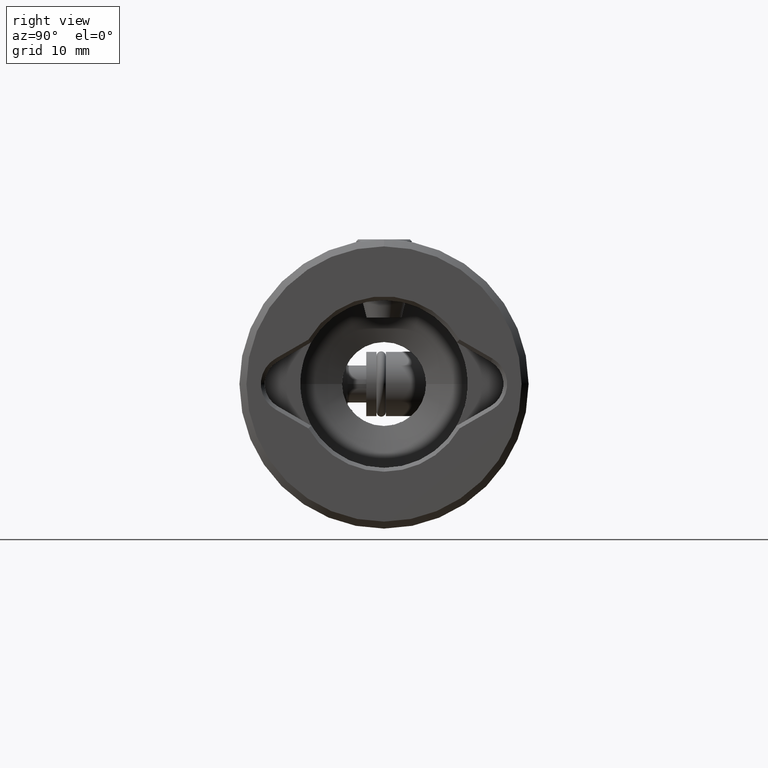
[diagram: clean part render]
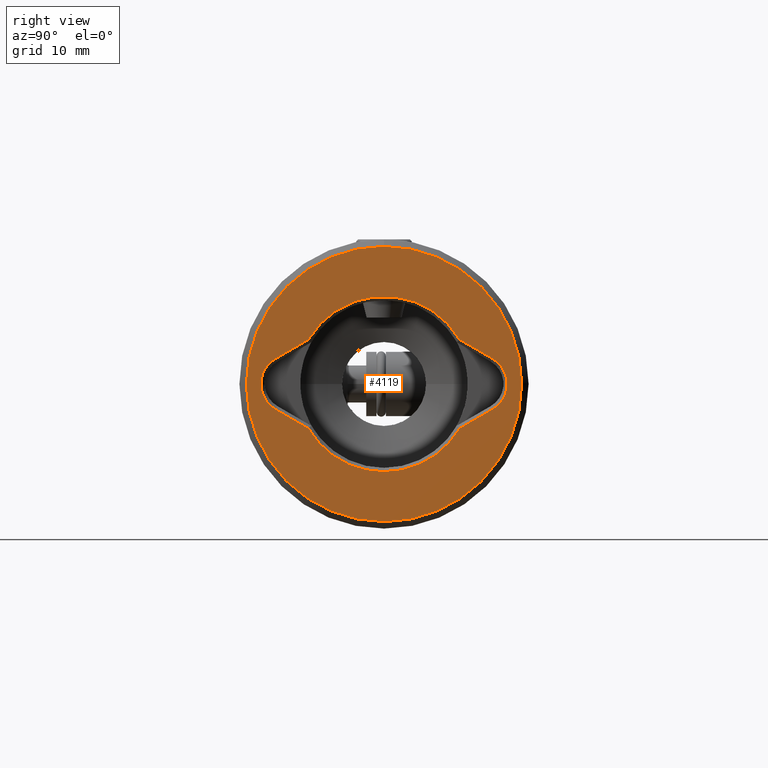
[diagram: same view with one face highlighted and labeled with its STEP entity id]
A machine part, right view. The second image highlights one B-rep face of the part: STEP entity #4119.
In plain terms, the highlighted planar face has unit normal (-1, -0, 0).
Its self-contained STEP definition (entity closure, byte-faithful):
#10 = AXIS2_PLACEMENT_3D ( 'NONE', #3652, #3949, #1526 ) ;
#27 = CIRCLE ( 'NONE', #906, 3.150000000000013678 ) ;
#53 = CARTESIAN_POINT ( 'NONE',  ( 4.759769798814311947, -8.105836876121800927, 1.397440057103510890E-15 ) ) ;
#92 = ORIENTED_EDGE ( 'NONE', *, *, #2746, .T. ) ;
#109 = CARTESIAN_POINT ( 'NONE',  ( 0.0000000000000000000, 0.0000000000000000000, 0.0000000000000000000 ) ) ;
#176 = ORIENTED_EDGE ( 'NONE', *, *, #4326, .T. ) ;
#234 = EDGE_LOOP ( 'NONE', ( #2050, #2069, #458, #3097, #1823, #297, #3054, #92, #176 ) ) ;
#297 = ORIENTED_EDGE ( 'NONE', *, *, #3318, .T. ) ;
#335 = ORIENTED_EDGE ( 'NONE', *, *, #824, .T. ) ;
#361 = VERTEX_POINT ( 'NONE', #4590 ) ;
#370 = DIRECTION ( 'NONE',  ( 0.5000000000000014433, 0.8660254037844379305, -1.492830725713291689E-16 ) ) ;
#448 = EDGE_CURVE ( 'NONE', #2207, #3595, #2475, .T. ) ;
#458 = ORIENTED_EDGE ( 'NONE', *, *, #2467, .T. ) ;
#538 = DIRECTION ( 'NONE',  ( -0.5000000000000009992, 0.8660254037844380415, -1.493019539276800953E-16 ) ) ;
#577 = VECTOR ( 'NONE', #370, 999.9999999999998863 ) ;
#684 = AXIS2_PLACEMENT_3D ( 'NONE', #1964, #4416, #4445 ) ;
#738 = EDGE_CURVE ( 'NONE', #3982, #2985, #3258, .T. ) ;
#769 = CARTESIAN_POINT ( 'NONE',  ( -4.759769798814311947, 8.105836876121802703, -1.397440057103511285E-15 ) ) ;
#824 = EDGE_CURVE ( 'NONE', #1554, #2534, #1235, .T. ) ;
#847 = CARTESIAN_POINT ( 'NONE',  ( 2.727980021920985099, -11.62500000000004263, 2.004063698530809863E-15 ) ) ;
#849 = VERTEX_POINT ( 'NONE', #769 ) ;
#906 = AXIS2_PLACEMENT_3D ( 'NONE', #3737, #4453, #3017 ) ;
#934 = EDGE_CURVE ( 'NONE', #1367, #2389, #4057, .T. ) ;
#994 = FACE_BOUND ( 'NONE', #234, .T. ) ;
#1102 = DIRECTION ( 'NONE',  ( -1.888135635087050939E-20, -1.723881454251955994E-16, 1.000000000000000000 ) ) ;
#1235 = CIRCLE ( 'NONE', #10, 14.75000000000006750 ) ;
#1367 = VERTEX_POINT ( 'NONE', #4036 ) ;
#1383 = EDGE_CURVE ( 'NONE', #2534, #1554, #1762, .T. ) ;
#1394 = VECTOR ( 'NONE', #538, 1000.000000000000114 ) ;
#1502 = DIRECTION ( 'NONE',  ( 1.000000000000000000, -4.163335914195348830E-17, 1.888135635086333229E-20 ) ) ;
#1519 = EDGE_CURVE ( 'NONE', #2389, #849, #2430, .T. ) ;
#1526 = DIRECTION ( 'NONE',  ( 1.000000000000000000, -4.163335914195348213E-17, 1.888135635086333229E-20 ) ) ;
#1551 = AXIS2_PLACEMENT_3D ( 'NONE', #109, #2660, #3016 ) ;
#1554 = VERTEX_POINT ( 'NONE', #4517 ) ;
#1585 = CARTESIAN_POINT ( 'NONE',  ( 4.759769798814313724, 8.105836876121800927, -1.397260315284072058E-15 ) ) ;
#1638 = ORIENTED_EDGE ( 'NONE', *, *, #1383, .T. ) ;
#1686 = CIRCLE ( 'NONE', #4189, 9.400000000000051870 ) ;
#1708 = AXIS2_PLACEMENT_3D ( 'NONE', #3282, #2947, #1502 ) ;
#1762 = CIRCLE ( 'NONE', #1551, 14.75000000000006750 ) ;
#1820 = CARTESIAN_POINT ( 'NONE',  ( 0.0000000000000000000, 0.0000000000000000000, 0.0000000000000000000 ) ) ;
#1823 = ORIENTED_EDGE ( 'NONE', *, *, #1519, .T. ) ;
#1895 = LINE ( 'NONE', #2695, #1394 ) ;
#1945 = FACE_OUTER_BOUND ( 'NONE', #4391, .T. ) ;
#1964 = CARTESIAN_POINT ( 'NONE',  ( -3.326899834363186723E-16, 10.05000000000004157, -1.732500861523214966E-15 ) ) ;
#2011 = CARTESIAN_POINT ( 'NONE',  ( -9.400000000000050093, 3.913535759343648558E-16, 0.0000000000000000000 ) ) ;
#2028 = EDGE_CURVE ( 'NONE', #3595, #3004, #3696, .T. ) ;
#2050 = ORIENTED_EDGE ( 'NONE', *, *, #448, .T. ) ;
#2069 = ORIENTED_EDGE ( 'NONE', *, *, #2028, .T. ) ;
#2157 = CARTESIAN_POINT ( 'NONE',  ( 7.079757675937829120, -4.087500000000040323, 7.047702198530476099E-16 ) ) ;
#2196 = DIRECTION ( 'NONE',  ( 1.000000000000000000, -4.163335914195348213E-17, 1.888135635086332928E-20 ) ) ;
#2207 = VERTEX_POINT ( 'NONE', #847 ) ;
#2214 = VECTOR ( 'NONE', #3436, 999.9999999999998863 ) ;
#2367 = CARTESIAN_POINT ( 'NONE',  ( -14.74999999999998934, 2.417337286197967766E-15, 2.785000061695307738E-19 ) ) ;
#2389 = VERTEX_POINT ( 'NONE', #4117 ) ;
#2397 = VECTOR ( 'NONE', #3637, 999.9999999999998863 ) ;
#2430 = LINE ( 'NONE', #4532, #2214 ) ;
#2467 = EDGE_CURVE ( 'NONE', #3004, #1367, #1895, .T. ) ;
#2475 = LINE ( 'NONE', #2157, #577 ) ;
#2534 = VERTEX_POINT ( 'NONE', #2367 ) ;
#2660 = DIRECTION ( 'NONE',  ( -1.888135635086342558E-20, 1.723881454251955994E-16, -1.000000000000000000 ) ) ;
#2695 = CARTESIAN_POINT ( 'NONE',  ( 7.079757675937830008, 4.087500000000036771, -7.045028689979328546E-16 ) ) ;
#2746 = EDGE_CURVE ( 'NONE', #2985, #361, #3021, .T. ) ;
#2939 = CARTESIAN_POINT ( 'NONE',  ( -7.079757675937831785, -4.087500000000039435, 7.045028689979332490E-16 ) ) ;
#2947 = DIRECTION ( 'NONE',  ( 1.888135635086342558E-20, -1.723881454251955994E-16, 1.000000000000000000 ) ) ;
#2985 = VERTEX_POINT ( 'NONE', #3681 ) ;
#3001 = AXIS2_PLACEMENT_3D ( 'NONE', #1820, #4293, #4586 ) ;
#3004 = VERTEX_POINT ( 'NONE', #1585 ) ;
#3016 = DIRECTION ( 'NONE',  ( 1.000000000000000000, -4.163335914195348213E-17, 1.888135635086333229E-20 ) ) ;
#3017 = DIRECTION ( 'NONE',  ( 1.000000000000000000, 0.0000000000000000000, 1.888135635085025703E-20 ) ) ;
#3021 = LINE ( 'NONE', #2939, #2397 ) ;
#3054 = ORIENTED_EDGE ( 'NONE', *, *, #738, .T. ) ;
#3097 = ORIENTED_EDGE ( 'NONE', *, *, #934, .T. ) ;
#3258 = CIRCLE ( 'NONE', #3001, 9.400000000000051870 ) ;
#3282 = CARTESIAN_POINT ( 'NONE',  ( 0.0000000000000000000, 0.0000000000000000000, 0.0000000000000000000 ) ) ;
#3318 = EDGE_CURVE ( 'NONE', #849, #3982, #1686, .T. ) ;
#3436 = DIRECTION ( 'NONE',  ( -0.5000000000000012212, -0.8660254037844380415, 1.492830725713292428E-16 ) ) ;
#3552 = DIRECTION ( 'NONE',  ( 1.000000000000000000, -4.163335914195348213E-17, 1.888135635086333229E-20 ) ) ;
#3579 = DIRECTION ( 'NONE',  ( 1.888135635086342558E-20, -1.723881454251955994E-16, 1.000000000000000000 ) ) ;
#3584 = AXIS2_PLACEMENT_3D ( 'NONE', #4267, #1102, #3552 ) ;
#3592 = CARTESIAN_POINT ( 'NONE',  ( 0.0000000000000000000, 0.0000000000000000000, 0.0000000000000000000 ) ) ;
#3595 = VERTEX_POINT ( 'NONE', #53 ) ;
#3637 = DIRECTION ( 'NONE',  ( 0.5000000000000012212, -0.8660254037844380415, 1.493019539276800953E-16 ) ) ;
#3652 = CARTESIAN_POINT ( 'NONE',  ( 0.0000000000000000000, 0.0000000000000000000, 0.0000000000000000000 ) ) ;
#3681 = CARTESIAN_POINT ( 'NONE',  ( -4.759769798814312836, -8.105836876121802703, 1.397260315284072649E-15 ) ) ;
#3696 = CIRCLE ( 'NONE', #1708, 9.400000000000050093 ) ;
#3737 = CARTESIAN_POINT ( 'NONE',  ( 5.041405353169503547E-16, -10.05000000000004157, 1.732500861523214966E-15 ) ) ;
#3949 = DIRECTION ( 'NONE',  ( -1.888135635086342558E-20, 1.723881454251955994E-16, -1.000000000000000000 ) ) ;
#3982 = VERTEX_POINT ( 'NONE', #2011 ) ;
#4036 = CARTESIAN_POINT ( 'NONE',  ( 2.727980021920989540, 11.62500000000004263, -2.003960682604985753E-15 ) ) ;
#4057 = CIRCLE ( 'NONE', #684, 3.150000000000015898 ) ;
#4117 = CARTESIAN_POINT ( 'NONE',  ( -2.727980021920989095, 11.62500000000004086, -2.004063698530809469E-15 ) ) ;
#4119 = ADVANCED_FACE ( 'NONE', ( #1945, #994 ), #4283, .F. ) ;
#4189 = AXIS2_PLACEMENT_3D ( 'NONE', #3592, #3579, #2196 ) ;
#4267 = CARTESIAN_POINT ( 'NONE',  ( 0.0000000000000000000, 0.0000000000000000000, 0.0000000000000000000 ) ) ;
#4283 = PLANE ( 'NONE',  #3584 ) ;
#4293 = DIRECTION ( 'NONE',  ( 1.888135635086342558E-20, -1.723881454251955994E-16, 1.000000000000000000 ) ) ;
#4326 = EDGE_CURVE ( 'NONE', #361, #2207, #27, .T. ) ;
#4391 = EDGE_LOOP ( 'NONE', ( #335, #1638 ) ) ;
#4416 = DIRECTION ( 'NONE',  ( 1.888135635086342558E-20, -1.723881454251955994E-16, 1.000000000000000000 ) ) ;
#4445 = DIRECTION ( 'NONE',  ( 1.000000000000000000, 0.0000000000000000000, 1.888135635085024198E-20 ) ) ;
#4453 = DIRECTION ( 'NONE',  ( 1.888135635086342558E-20, -1.723881454251955994E-16, 1.000000000000000000 ) ) ;
#4517 = CARTESIAN_POINT ( 'NONE',  ( 14.75000000000006750, -6.140920473438166949E-16, 2.785000061752354264E-19 ) ) ;
#4532 = CARTESIAN_POINT ( 'NONE',  ( -7.079757675937831785, 4.087500000000039435, -7.047702198530473141E-16 ) ) ;
#4586 = DIRECTION ( 'NONE',  ( 1.000000000000000000, -4.163335914195348213E-17, 1.888135635086332928E-20 ) ) ;
#4590 = CARTESIAN_POINT ( 'NONE',  ( -2.727980021920987763, -11.62500000000004263, 2.003960682604985753E-15 ) ) ;